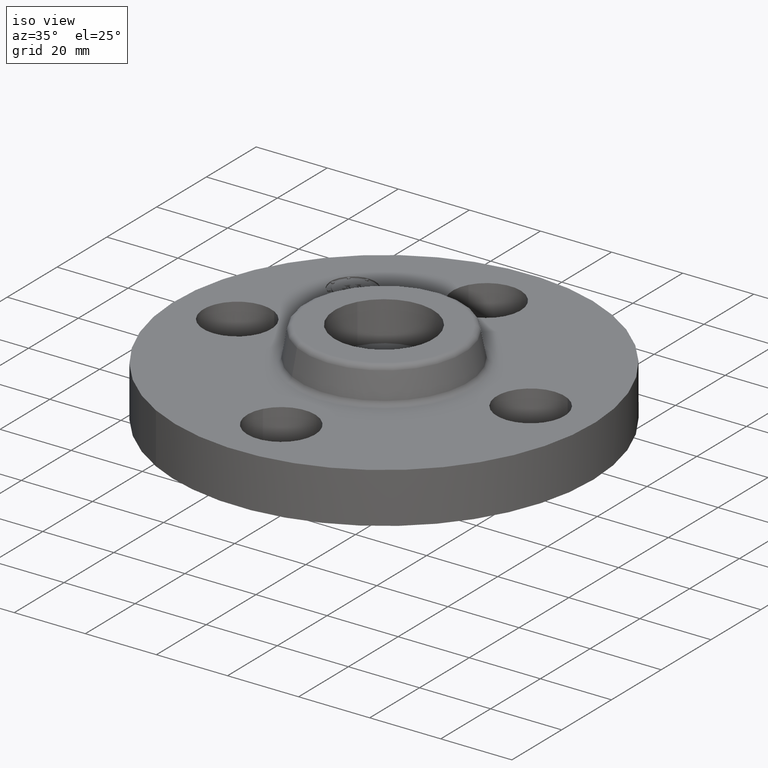
[diagram: clean part render]
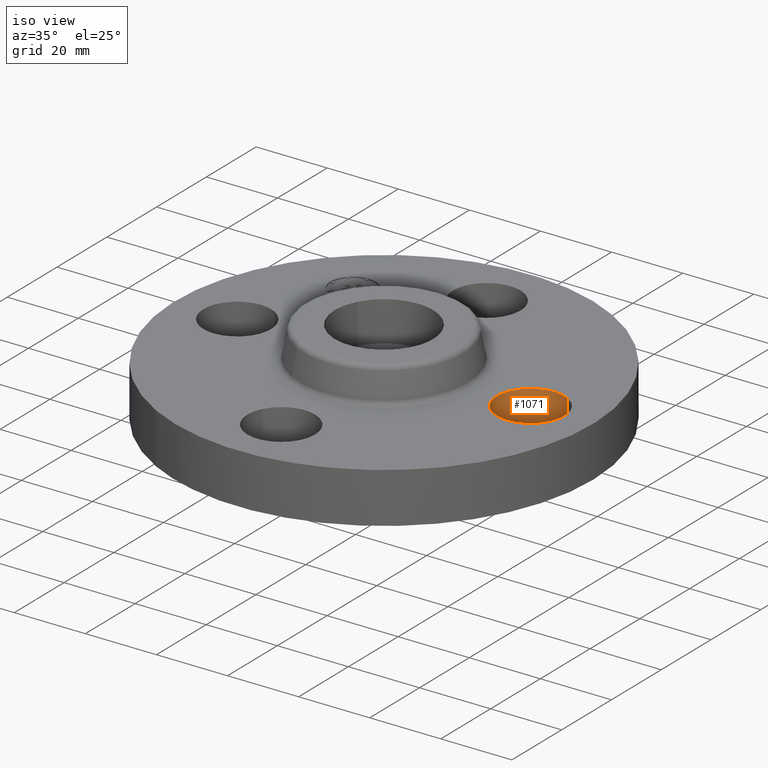
[diagram: same view with one face highlighted and labeled with its STEP entity id]
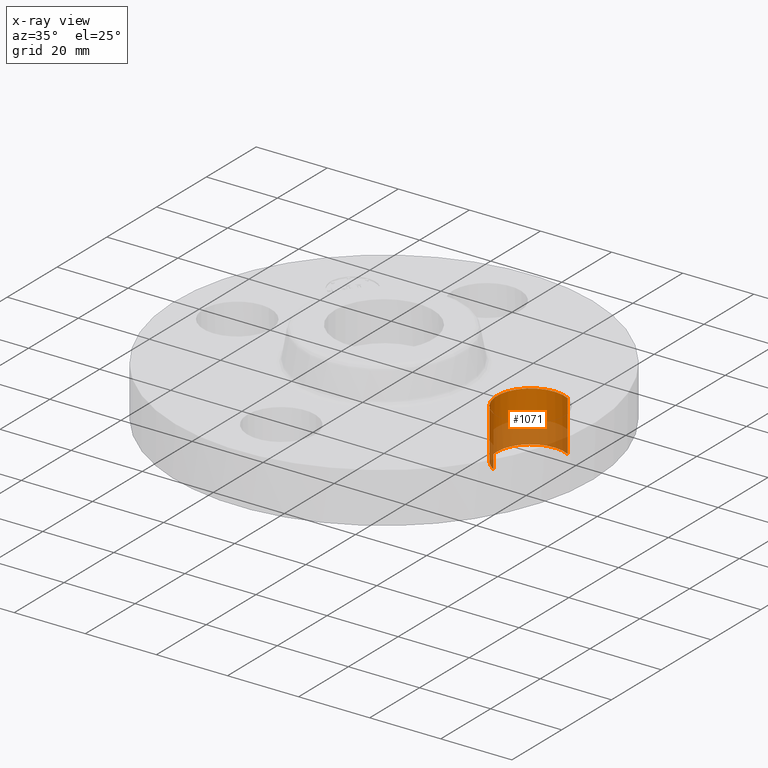
[diagram: x-ray of the same camera — body ghosted, the highlighted face saturated]
A machine part, iso view. The second image highlights one B-rep face of the part: STEP entity #1071.
The next image is the same camera in x-ray: the body ghosted, the highlighted face saturated — about 42% of this face is hidden behind the body in this view.
In plain terms, the highlighted cylindrical surface (partial cylindrical patch) has radius 9.525 mm, axis along (0, -0, -1).
Its self-contained STEP definition (entity closure, byte-faithful):
#737=AXIS2_PLACEMENT_3D('Circle Axis2P3D',#735,#736,$) ;
#1036=AXIS2_PLACEMENT_3D('Cylinder Axis2P3D',#1033,#1034,#1035) ;
#1047=AXIS2_PLACEMENT_3D('Circle Axis2P3D',#1045,#1046,$) ;
#1054=AXIS2_PLACEMENT_3D('Circle Axis2P3D',#1052,#1053,$) ;
#735=CARTESIAN_POINT('Axis2P3D Location',(1.62500000001,-1.287956618E-011,0.560000000002)) ;
#739=CARTESIAN_POINT('Vertex',(1.44521542304,-0.32909346071,0.560000000002)) ;
#741=CARTESIAN_POINT('Vertex',(1.80478457699,0.32909346071,0.559999999987)) ;
#1033=CARTESIAN_POINT('Axis2P3D Location',(1.62500000001,-1.8023868212E-016,0.556062992128)) ;
#1038=CARTESIAN_POINT('Line Origine',(1.44521542303,-0.32909346071,0.279999999998)) ;
#1042=CARTESIAN_POINT('Vertex',(1.44521542304,-0.329093460688,0.)) ;
#1045=CARTESIAN_POINT('Axis2P3D Location',(1.62500000001,-1.8023868212E-016,8.4688861348E-012)) ;
#1049=CARTESIAN_POINT('Vertex',(1.25000000001,-2.09805925913E-016,-9.55994688486E-012)) ;
#1052=CARTESIAN_POINT('Axis2P3D Location',(1.62500000001,-1.8023868212E-016,8.4688861348E-012)) ;
#1056=CARTESIAN_POINT('Vertex',(1.80478457699,0.329093460708,0.)) ;
#1059=CARTESIAN_POINT('Line Origine',(1.80478457699,0.32909346071,0.279999999998)) ;
#736=DIRECTION('Axis2P3D Direction',(0.,0.,-0.0393700787402)) ;
#1034=DIRECTION('Axis2P3D Direction',(0.,-0.,-0.0393700787402)) ;
#1035=DIRECTION('Axis2P3D XDirection',(-0.0188750212049,-0.0345504945626,0.)) ;
#1039=DIRECTION('Vector Direction',(0.,0.,-0.0393700787402)) ;
#1046=DIRECTION('Axis2P3D Direction',(0.,-0.,-0.0393700787402)) ;
#1053=DIRECTION('Axis2P3D Direction',(0.,-0.,-0.0393700787402)) ;
#1060=DIRECTION('Vector Direction',(0.,0.,-0.0393700787402)) ;
#1040=VECTOR('Line Direction',#1039,0.0393700787402) ;
#1061=VECTOR('Line Direction',#1060,0.0393700787402) ;
#1065=ORIENTED_EDGE('',*,*,#1044,.F.) ;
#1066=ORIENTED_EDGE('',*,*,#1051,.T.) ;
#1067=ORIENTED_EDGE('',*,*,#1058,.T.) ;
#1068=ORIENTED_EDGE('',*,*,#1063,.T.) ;
#1069=ORIENTED_EDGE('',*,*,#743,.F.) ;
#1071=ADVANCED_FACE('PartBody',(#1070),#1037,.F.) ;
#738=CIRCLE('generated circle',#737,0.374999999988) ;
#1048=CIRCLE('generated circle',#1047,0.375000000001) ;
#1055=CIRCLE('generated circle',#1054,0.375000000001) ;
#1037=CYLINDRICAL_SURFACE('generated cylinder',#1036,0.375000000001) ;
#743=EDGE_CURVE('',#740,#742,#738,.T.) ;
#1044=EDGE_CURVE('',#1043,#740,#1041,.F.) ;
#1051=EDGE_CURVE('',#1043,#1050,#1048,.T.) ;
#1058=EDGE_CURVE('',#1050,#1057,#1055,.T.) ;
#1063=EDGE_CURVE('',#1057,#742,#1062,.F.) ;
#1064=EDGE_LOOP('',(#1065,#1066,#1067,#1068,#1069)) ;
#1070=FACE_OUTER_BOUND('',#1064,.T.) ;
#1041=LINE('Line',#1038,#1040) ;
#1062=LINE('Line',#1059,#1061) ;
#740=VERTEX_POINT('',#739) ;
#742=VERTEX_POINT('',#741) ;
#1043=VERTEX_POINT('',#1042) ;
#1050=VERTEX_POINT('',#1049) ;
#1057=VERTEX_POINT('',#1056) ;